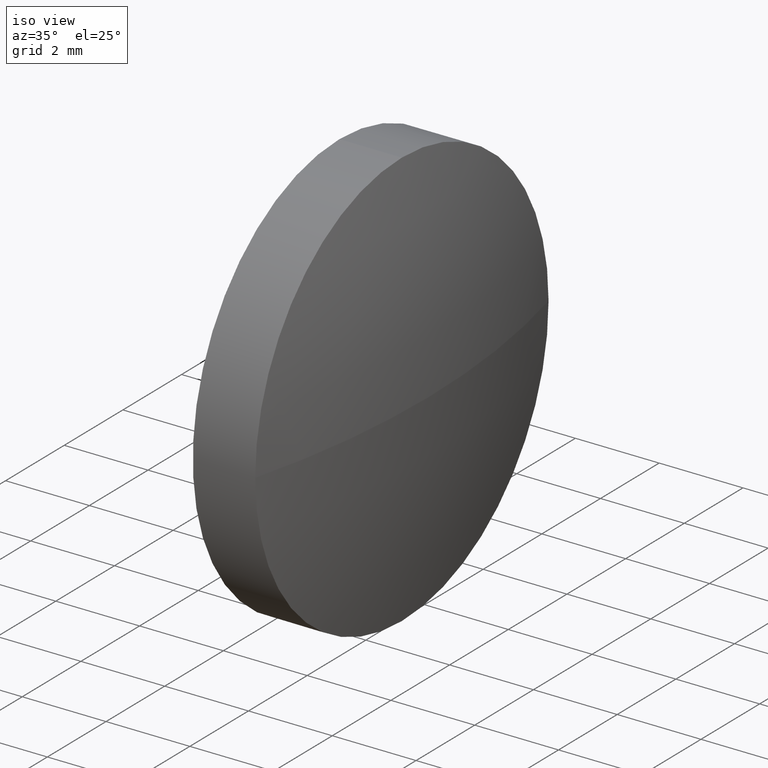
[diagram: clean part render]
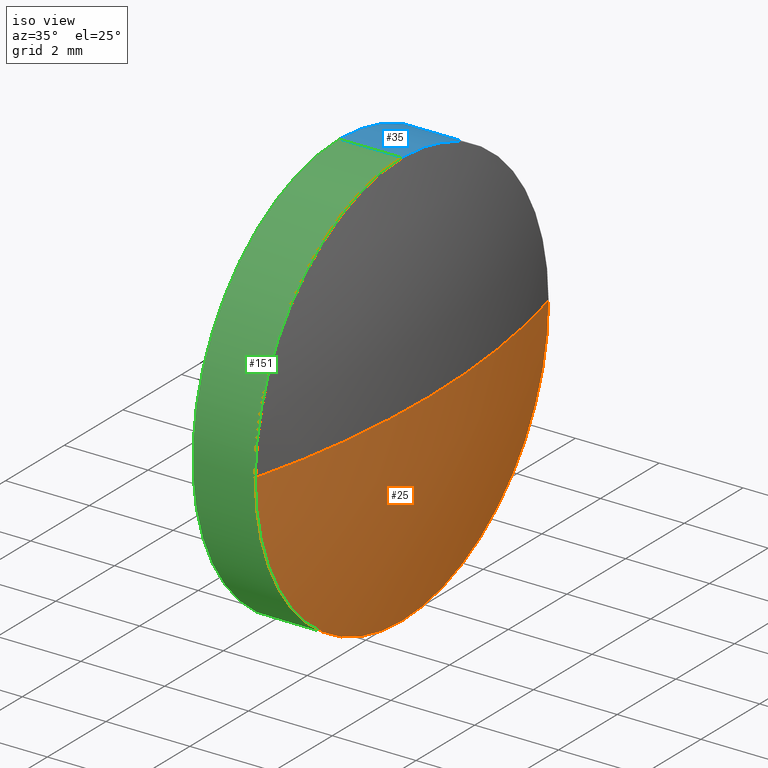
[diagram: same view with three faces highlighted in distinct colors, each labeled with its STEP entity id]
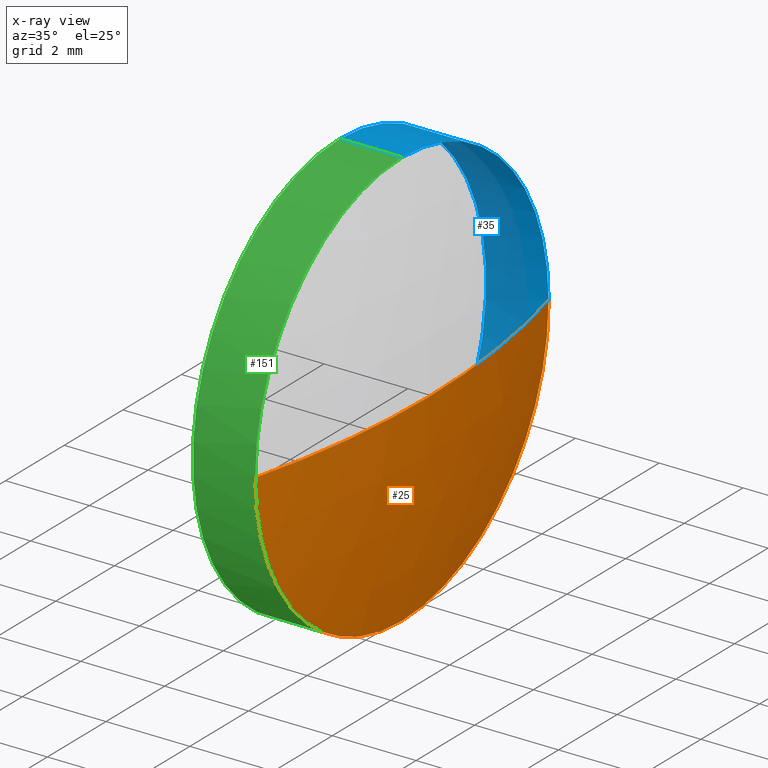
[diagram: x-ray of the same camera — body ghosted, the three highlighted faces saturated]
A machine part, iso view with three faces highlighted in distinct colors.
The next image is the same camera in x-ray (body ghosted, the three faces saturated) — at least one of them is partly hidden behind the body in this view.
Their STEP definitions:

[orange] entity #25 — the highlighted spherical surface has radius 19.9676 mm.
#1 = EDGE_CURVE ( 'NONE', #103, #53, #95, .T. ) ;
#5 = EDGE_CURVE ( 'NONE', #102, #23, #133, .T. ) ;
#7 = CIRCLE ( 'NONE', #38, 19.96758150351990600 ) ;
#14 = SPHERICAL_SURFACE ( 'NONE', #66, 19.96758150351988400 ) ;
#16 = DIRECTION ( 'NONE',  ( 0.0000000000000000000, -1.224646799147353200E-016, 1.000000000000000000 ) ) ;
#23 = VERTEX_POINT ( 'NONE', #104 ) ;
#25 = ADVANCED_FACE ( 'NONE', ( #139 ), #14, .T. ) ;
#27 = DIRECTION ( 'NONE',  ( -1.000000000000000000, 0.0000000000000000000, 0.0000000000000000000 ) ) ;
#28 = AXIS2_PLACEMENT_3D ( 'NONE', #120, #16, #136 ) ;
#33 = ORIENTED_EDGE ( 'NONE', *, *, #165, .F. ) ;
#37 = DIRECTION ( 'NONE',  ( -1.000000000000000000, -0.0000000000000000000, -0.0000000000000000000 ) ) ;
#38 = AXIS2_PLACEMENT_3D ( 'NONE', #107, #119, #27 ) ;
#49 = CARTESIAN_POINT ( 'NONE',  ( 508.3369411676876600, 24.74889030591634800, 0.0000000000000000000 ) ) ;
#50 = ORIENTED_EDGE ( 'NONE', *, *, #1, .F. ) ;
#53 = VERTEX_POINT ( 'NONE', #92 ) ;
#57 = AXIS2_PLACEMENT_3D ( 'NONE', #131, #37, #109 ) ;
#66 = AXIS2_PLACEMENT_3D ( 'NONE', #156, #171, #186 ) ;
#77 = EDGE_CURVE ( 'NONE', #102, #53, #7, .T. ) ;
#81 = AXIS2_PLACEMENT_3D ( 'NONE', #49, #121, #175 ) ;
#92 = CARTESIAN_POINT ( 'NONE',  ( 508.3369411676876600, 19.74889030591638000, 0.0000000000000000000 ) ) ;
#95 = CIRCLE ( 'NONE', #57, 5.000000000000000900 ) ;
#102 = VERTEX_POINT ( 'NONE', #158 ) ;
#103 = VERTEX_POINT ( 'NONE', #112 ) ;
#104 = CARTESIAN_POINT ( 'NONE',  ( 508.3369411676876600, 29.74889030591639000, 6.123233995736721900E-016 ) ) ;
#107 = CARTESIAN_POINT ( 'NONE',  ( 489.0055079280205100, 24.74889030591642200, 0.0000000000000000000 ) ) ;
#109 = DIRECTION ( 'NONE',  ( 0.0000000000000000000, 0.0000000000000000000, 1.000000000000000000 ) ) ;
#112 = CARTESIAN_POINT ( 'NONE',  ( 508.3369411676876600, 24.74889030591634800, -5.000000000000000900 ) ) ;
#119 = DIRECTION ( 'NONE',  ( 0.0000000000000000000, 0.0000000000000000000, -1.000000000000000000 ) ) ;
#120 = CARTESIAN_POINT ( 'NONE',  ( 489.0055079280205100, 24.74889030591642200, 0.0000000000000000000 ) ) ;
#121 = DIRECTION ( 'NONE',  ( -1.000000000000000000, -0.0000000000000000000, -0.0000000000000000000 ) ) ;
#128 = EDGE_LOOP ( 'NONE', ( #166, #143, #50, #33 ) ) ;
#131 = CARTESIAN_POINT ( 'NONE',  ( 508.3369411676876600, 24.74889030591634800, 0.0000000000000000000 ) ) ;
#133 = CIRCLE ( 'NONE', #28, 19.96758150351988400 ) ;
#136 = DIRECTION ( 'NONE',  ( 0.0000000000000000000, -1.000000000000000000, -1.224646799147353000E-016 ) ) ;
#139 = FACE_OUTER_BOUND ( 'NONE', #128, .T. ) ;
#143 = ORIENTED_EDGE ( 'NONE', *, *, #77, .T. ) ;
#149 = CIRCLE ( 'NONE', #81, 5.000000000000000900 ) ;
#156 = CARTESIAN_POINT ( 'NONE',  ( 489.0055079280205100, 24.74889030591642200, 0.0000000000000000000 ) ) ;
#158 = CARTESIAN_POINT ( 'NONE',  ( 508.9730894315404200, 24.74889030591642200, 0.0000000000000000000 ) ) ;
#165 = EDGE_CURVE ( 'NONE', #23, #103, #149, .T. ) ;
#166 = ORIENTED_EDGE ( 'NONE', *, *, #5, .F. ) ;
#171 = DIRECTION ( 'NONE',  ( 0.0000000000000000000, 0.0000000000000000000, 1.000000000000000000 ) ) ;
#175 = DIRECTION ( 'NONE',  ( 0.0000000000000000000, 0.0000000000000000000, 1.000000000000000000 ) ) ;
#186 = DIRECTION ( 'NONE',  ( 0.0000000000000000000, -1.000000000000000000, 0.0000000000000000000 ) ) ;

[blue] entity #35 — the highlighted cylindrical surface (partial cylindrical patch) has radius 5 mm, axis along (-1, -0, -0).
#2 = DIRECTION ( 'NONE',  ( 0.0000000000000000000, 0.0000000000000000000, 1.000000000000000000 ) ) ;
#12 = VERTEX_POINT ( 'NONE', #17 ) ;
#15 = DIRECTION ( 'NONE',  ( 0.0000000000000000000, 0.0000000000000000000, 1.000000000000000000 ) ) ;
#17 = CARTESIAN_POINT ( 'NONE',  ( 506.8469411676877000, 24.74889030591634800, 5.000000000000000900 ) ) ;
#20 = CARTESIAN_POINT ( 'NONE',  ( 505.9053906959132400, 24.74889030591634800, 5.000000000000000900 ) ) ;
#23 = VERTEX_POINT ( 'NONE', #104 ) ;
#24 = AXIS2_PLACEMENT_3D ( 'NONE', #110, #44, #2 ) ;
#35 = ADVANCED_FACE ( 'NONE', ( #130 ), #83, .T. ) ;
#44 = DIRECTION ( 'NONE',  ( -1.000000000000000000, -0.0000000000000000000, -0.0000000000000000000 ) ) ;
#45 = VECTOR ( 'NONE', #46, 1000.000000000000000 ) ;
#46 = DIRECTION ( 'NONE',  ( -1.000000000000000000, -0.0000000000000000000, -0.0000000000000000000 ) ) ;
#49 = CARTESIAN_POINT ( 'NONE',  ( 508.3369411676876600, 24.74889030591634800, 0.0000000000000000000 ) ) ;
#51 = AXIS2_PLACEMENT_3D ( 'NONE', #74, #114, #97 ) ;
#55 = EDGE_CURVE ( 'NONE', #103, #60, #181, .T. ) ;
#60 = VERTEX_POINT ( 'NONE', #142 ) ;
#61 = DIRECTION ( 'NONE',  ( -1.000000000000000000, -0.0000000000000000000, -0.0000000000000000000 ) ) ;
#67 = EDGE_CURVE ( 'NONE', #12, #60, #115, .T. ) ;
#68 = ORIENTED_EDGE ( 'NONE', *, *, #86, .T. ) ;
#69 = ORIENTED_EDGE ( 'NONE', *, *, #165, .T. ) ;
#74 = CARTESIAN_POINT ( 'NONE',  ( 508.3369411676876600, 24.74889030591634800, 0.0000000000000000000 ) ) ;
#81 = AXIS2_PLACEMENT_3D ( 'NONE', #49, #121, #175 ) ;
#83 = CYLINDRICAL_SURFACE ( 'NONE', #24, 5.000000000000000900 ) ;
#85 = LINE ( 'NONE', #20, #45 ) ;
#86 = EDGE_CURVE ( 'NONE', #183, #23, #154, .T. ) ;
#88 = VECTOR ( 'NONE', #61, 1000.000000000000000 ) ;
#97 = DIRECTION ( 'NONE',  ( 0.0000000000000000000, 0.0000000000000000000, 1.000000000000000000 ) ) ;
#103 = VERTEX_POINT ( 'NONE', #112 ) ;
#104 = CARTESIAN_POINT ( 'NONE',  ( 508.3369411676876600, 29.74889030591639000, 6.123233995736721900E-016 ) ) ;
#110 = CARTESIAN_POINT ( 'NONE',  ( 505.9053906959132400, 24.74889030591634800, 0.0000000000000000000 ) ) ;
#112 = CARTESIAN_POINT ( 'NONE',  ( 508.3369411676876600, 24.74889030591634800, -5.000000000000000900 ) ) ;
#114 = DIRECTION ( 'NONE',  ( -1.000000000000000000, -0.0000000000000000000, -0.0000000000000000000 ) ) ;
#115 = CIRCLE ( 'NONE', #155, 5.000000000000000900 ) ;
#121 = DIRECTION ( 'NONE',  ( -1.000000000000000000, -0.0000000000000000000, -0.0000000000000000000 ) ) ;
#123 = CARTESIAN_POINT ( 'NONE',  ( 508.3369411676876600, 24.74889030591634800, 5.000000000000000900 ) ) ;
#130 = FACE_OUTER_BOUND ( 'NONE', #162, .T. ) ;
#132 = CARTESIAN_POINT ( 'NONE',  ( 505.9053906959132400, 24.74889030591634800, -5.000000000000000900 ) ) ;
#141 = ORIENTED_EDGE ( 'NONE', *, *, #55, .T. ) ;
#142 = CARTESIAN_POINT ( 'NONE',  ( 506.8469411676877000, 24.74889030591634800, -5.000000000000000900 ) ) ;
#149 = CIRCLE ( 'NONE', #81, 5.000000000000000900 ) ;
#150 = ORIENTED_EDGE ( 'NONE', *, *, #180, .F. ) ;
#154 = CIRCLE ( 'NONE', #51, 5.000000000000000900 ) ;
#155 = AXIS2_PLACEMENT_3D ( 'NONE', #170, #168, #15 ) ;
#162 = EDGE_LOOP ( 'NONE', ( #69, #141, #167, #150, #68 ) ) ;
#165 = EDGE_CURVE ( 'NONE', #23, #103, #149, .T. ) ;
#167 = ORIENTED_EDGE ( 'NONE', *, *, #67, .F. ) ;
#168 = DIRECTION ( 'NONE',  ( -1.000000000000000000, -0.0000000000000000000, -0.0000000000000000000 ) ) ;
#170 = CARTESIAN_POINT ( 'NONE',  ( 506.8469411676877000, 24.74889030591634800, 0.0000000000000000000 ) ) ;
#175 = DIRECTION ( 'NONE',  ( 0.0000000000000000000, 0.0000000000000000000, 1.000000000000000000 ) ) ;
#180 = EDGE_CURVE ( 'NONE', #183, #12, #85, .T. ) ;
#181 = LINE ( 'NONE', #132, #88 ) ;
#183 = VERTEX_POINT ( 'NONE', #123 ) ;

[green] entity #151 — the highlighted cylindrical surface (partial cylindrical patch) has radius 5 mm, axis along (-1, -0, -0).
#1 = EDGE_CURVE ( 'NONE', #103, #53, #95, .T. ) ;
#3 = DIRECTION ( 'NONE',  ( 0.0000000000000000000, 0.0000000000000000000, 1.000000000000000000 ) ) ;
#8 = EDGE_LOOP ( 'NONE', ( #13, #73, #62, #116, #56 ) ) ;
#9 = DIRECTION ( 'NONE',  ( -1.000000000000000000, -0.0000000000000000000, -0.0000000000000000000 ) ) ;
#12 = VERTEX_POINT ( 'NONE', #17 ) ;
#13 = ORIENTED_EDGE ( 'NONE', *, *, #55, .F. ) ;
#17 = CARTESIAN_POINT ( 'NONE',  ( 506.8469411676877000, 24.74889030591634800, 5.000000000000000900 ) ) ;
#20 = CARTESIAN_POINT ( 'NONE',  ( 505.9053906959132400, 24.74889030591634800, 5.000000000000000900 ) ) ;
#21 = CIRCLE ( 'NONE', #84, 5.000000000000000900 ) ;
#30 = DIRECTION ( 'NONE',  ( -1.000000000000000000, -0.0000000000000000000, -0.0000000000000000000 ) ) ;
#37 = DIRECTION ( 'NONE',  ( -1.000000000000000000, -0.0000000000000000000, -0.0000000000000000000 ) ) ;
#39 = AXIS2_PLACEMENT_3D ( 'NONE', #124, #30, #94 ) ;
#42 = DIRECTION ( 'NONE',  ( -1.000000000000000000, -0.0000000000000000000, -0.0000000000000000000 ) ) ;
#45 = VECTOR ( 'NONE', #46, 1000.000000000000000 ) ;
#46 = DIRECTION ( 'NONE',  ( -1.000000000000000000, -0.0000000000000000000, -0.0000000000000000000 ) ) ;
#52 = AXIS2_PLACEMENT_3D ( 'NONE', #145, #9, #3 ) ;
#53 = VERTEX_POINT ( 'NONE', #92 ) ;
#55 = EDGE_CURVE ( 'NONE', #103, #60, #181, .T. ) ;
#56 = ORIENTED_EDGE ( 'NONE', *, *, #59, .F. ) ;
#57 = AXIS2_PLACEMENT_3D ( 'NONE', #131, #37, #109 ) ;
#59 = EDGE_CURVE ( 'NONE', #60, #12, #21, .T. ) ;
#60 = VERTEX_POINT ( 'NONE', #142 ) ;
#61 = DIRECTION ( 'NONE',  ( -1.000000000000000000, -0.0000000000000000000, -0.0000000000000000000 ) ) ;
#62 = ORIENTED_EDGE ( 'NONE', *, *, #99, .T. ) ;
#73 = ORIENTED_EDGE ( 'NONE', *, *, #1, .T. ) ;
#84 = AXIS2_PLACEMENT_3D ( 'NONE', #134, #42, #144 ) ;
#85 = LINE ( 'NONE', #20, #45 ) ;
#88 = VECTOR ( 'NONE', #61, 1000.000000000000000 ) ;
#92 = CARTESIAN_POINT ( 'NONE',  ( 508.3369411676876600, 19.74889030591638000, 0.0000000000000000000 ) ) ;
#94 = DIRECTION ( 'NONE',  ( 0.0000000000000000000, 0.0000000000000000000, 1.000000000000000000 ) ) ;
#95 = CIRCLE ( 'NONE', #57, 5.000000000000000900 ) ;
#99 = EDGE_CURVE ( 'NONE', #53, #183, #174, .T. ) ;
#103 = VERTEX_POINT ( 'NONE', #112 ) ;
#109 = DIRECTION ( 'NONE',  ( 0.0000000000000000000, 0.0000000000000000000, 1.000000000000000000 ) ) ;
#112 = CARTESIAN_POINT ( 'NONE',  ( 508.3369411676876600, 24.74889030591634800, -5.000000000000000900 ) ) ;
#116 = ORIENTED_EDGE ( 'NONE', *, *, #180, .T. ) ;
#123 = CARTESIAN_POINT ( 'NONE',  ( 508.3369411676876600, 24.74889030591634800, 5.000000000000000900 ) ) ;
#124 = CARTESIAN_POINT ( 'NONE',  ( 505.9053906959132400, 24.74889030591634800, 0.0000000000000000000 ) ) ;
#131 = CARTESIAN_POINT ( 'NONE',  ( 508.3369411676876600, 24.74889030591634800, 0.0000000000000000000 ) ) ;
#132 = CARTESIAN_POINT ( 'NONE',  ( 505.9053906959132400, 24.74889030591634800, -5.000000000000000900 ) ) ;
#134 = CARTESIAN_POINT ( 'NONE',  ( 506.8469411676877000, 24.74889030591634800, 0.0000000000000000000 ) ) ;
#142 = CARTESIAN_POINT ( 'NONE',  ( 506.8469411676877000, 24.74889030591634800, -5.000000000000000900 ) ) ;
#144 = DIRECTION ( 'NONE',  ( 0.0000000000000000000, 0.0000000000000000000, 1.000000000000000000 ) ) ;
#145 = CARTESIAN_POINT ( 'NONE',  ( 508.3369411676876600, 24.74889030591634800, 0.0000000000000000000 ) ) ;
#151 = ADVANCED_FACE ( 'NONE', ( #152 ), #177, .T. ) ;
#152 = FACE_OUTER_BOUND ( 'NONE', #8, .T. ) ;
#174 = CIRCLE ( 'NONE', #52, 5.000000000000000900 ) ;
#177 = CYLINDRICAL_SURFACE ( 'NONE', #39, 5.000000000000000900 ) ;
#180 = EDGE_CURVE ( 'NONE', #183, #12, #85, .T. ) ;
#181 = LINE ( 'NONE', #132, #88 ) ;
#183 = VERTEX_POINT ( 'NONE', #123 ) ;